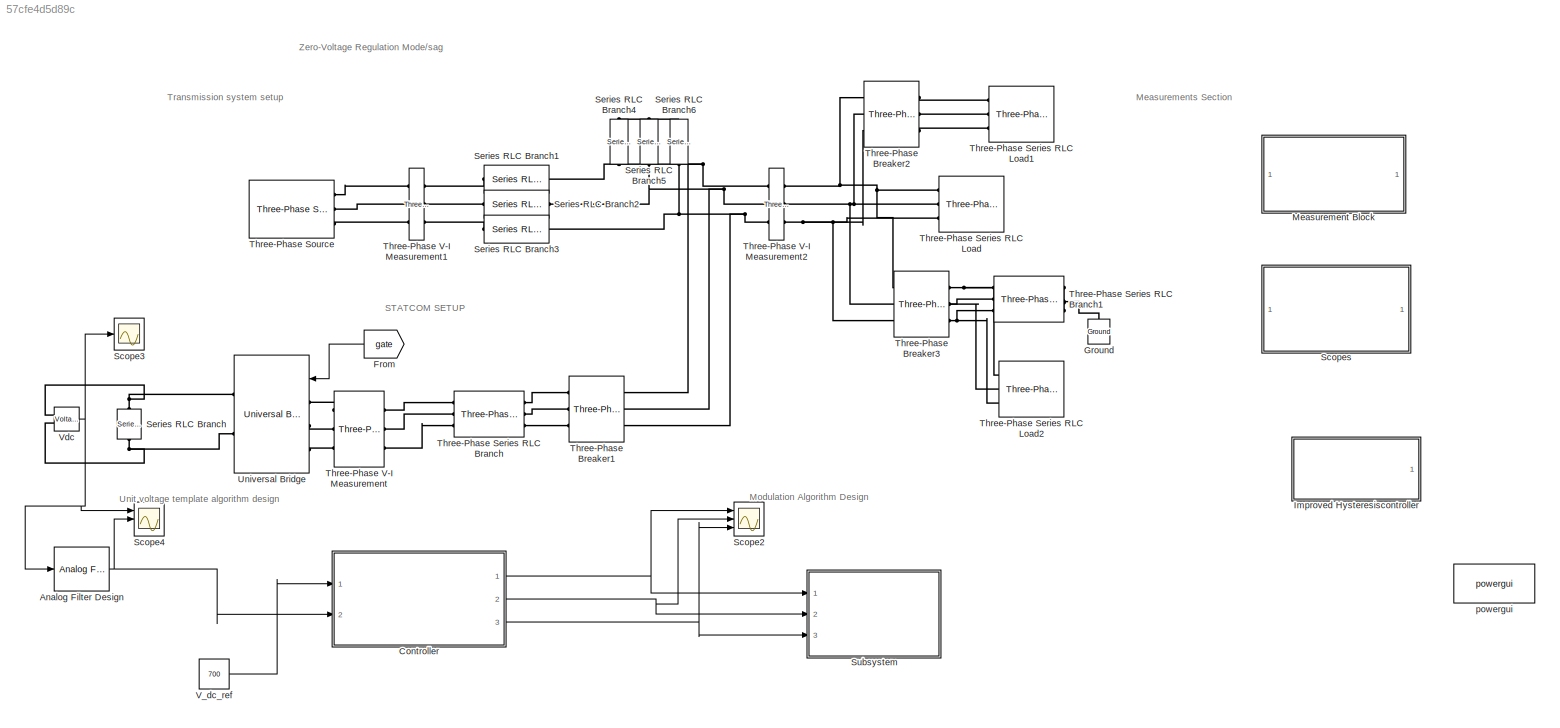
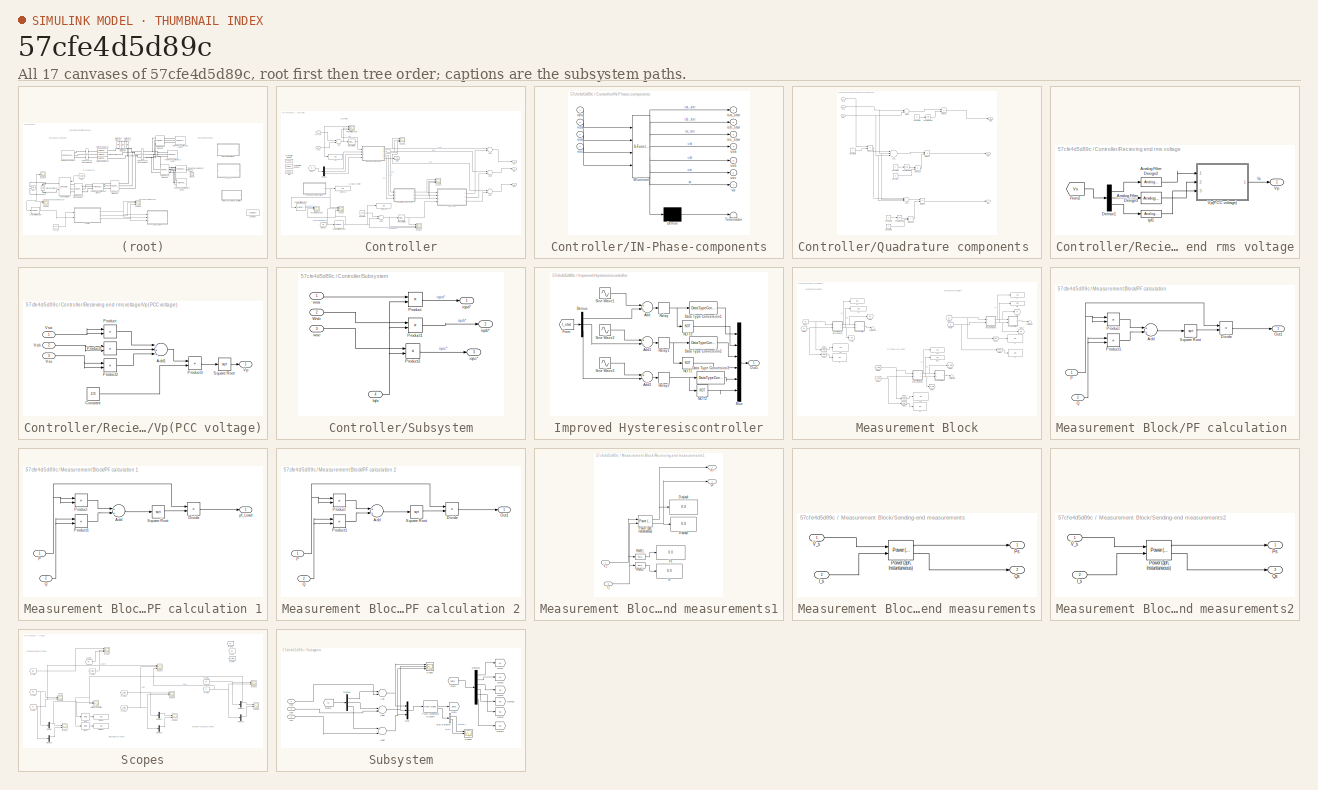
[diagram: thumbnail index - all 17 canvases of the model, root first then tree order]
MODEL slx_57cfe4d5d89c
KIND model
CONFIG AbsTol = auto
CONFIG EnableMultiTasking = off
CONFIG FixedStep = auto
CONFIG MaxStep = 1e-5
CONFIG MinStep = auto
CONFIG RelTol = 1e-3
CONFIG SampleTimeConstraint = Unconstrained
CONFIG Solver = ode23
CONFIG SolverName = ode23
CONFIG StartTime = 0.0
CONFIG StopTime = 1
BLOCK [Reference] Analog Filter Design  REF=dsparch4/Analog
Filter Design
  Ports = [1, 1]
  SourceBlock = dsparch4/Analog\nFilter Design
  SourceProductBaseCode = DS
  SourceProductName = DSP System Toolbox
  SourceType = Analog Filter Design
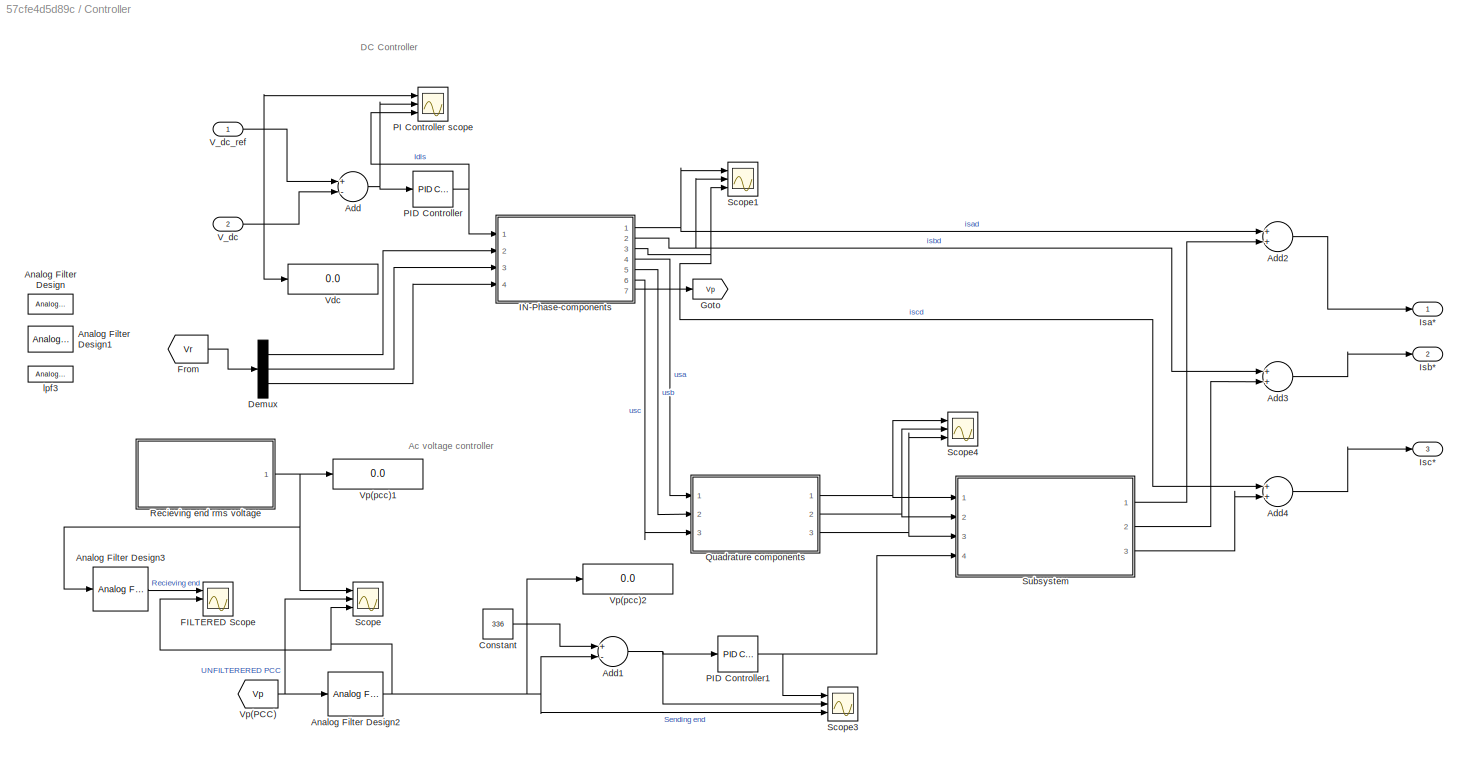
BLOCK [SubSystem] Controller
  Ports = [2, 3]
  RequestExecContextInheritance = off
BLOCK [Sum] Controller/Add
  InputSameDT = off
  Inputs = +-
  OutDataTypeStr = Inherit: Inherit via internal rule
  Ports = [2, 1]
  SaturateOnIntegerOverflow = off
BLOCK [Sum] Controller/Add1
  InputSameDT = off
  Inputs = +-
  OutDataTypeStr = Inherit: Inherit via internal rule
  Ports = [2, 1]
  SaturateOnIntegerOverflow = off
BLOCK [Sum] Controller/Add2
  InputSameDT = off
  OutDataTypeStr = Inherit: Inherit via internal rule
  Ports = [2, 1]
  SaturateOnIntegerOverflow = off
BLOCK [Sum] Controller/Add3
  InputSameDT = off
  OutDataTypeStr = Inherit: Inherit via internal rule
  Ports = [2, 1]
  SaturateOnIntegerOverflow = off
BLOCK [Sum] Controller/Add4
  InputSameDT = off
  OutDataTypeStr = Inherit: Inherit via internal rule
  Ports = [2, 1]
  SaturateOnIntegerOverflow = off
BLOCK [Reference] Controller/Analog Filter Design  REF=dsparch4/Analog
Filter Design
  Ports = [1, 1]
  SourceBlock = dsparch4/Analog\nFilter Design
  SourceProductBaseCode = DS
  SourceProductName = DSP System Toolbox
  SourceType = Analog Filter Design
BLOCK [Reference] Controller/Analog Filter Design1  REF=dsparch4/Analog
Filter Design
  Ports = [1, 1]
  SourceBlock = dsparch4/Analog\nFilter Design
  SourceProductBaseCode = DS
  SourceProductName = DSP System Toolbox
  SourceType = Analog Filter Design
BLOCK [Reference] Controller/Analog Filter Design2  REF=dsparch4/Analog
Filter Design
  Ports = [1, 1]
  SourceBlock = dsparch4/Analog\nFilter Design
  SourceProductBaseCode = DS
  SourceProductName = DSP System Toolbox
  SourceType = Analog Filter Design
BLOCK [Reference] Controller/Analog Filter Design3  REF=dsparch4/Analog
Filter Design
  Ports = [1, 1]
  SourceBlock = dsparch4/Analog\nFilter Design
  SourceProductBaseCode = DS
  SourceProductName = DSP System Toolbox
  SourceType = Analog Filter Design
BLOCK [Constant] Controller/Constant
  Value = 336
BLOCK [Demux] Controller/Demux
  DisplayOption = bar
  Outputs = 3
  Ports = [1, 3]
BLOCK [Scope] Controller/FILTERED Scope
  Floating = off
  NumInputPorts = 3
  Ports = [3]
  ScopeSpecificationString = Simulink.scopes.TimeScopeBlockCfg('CurrentConfiguration', extmgr.ConfigurationSet(extmgr.Configuration('Core','General UI',true),extmgr.Configuration('Core','Source UI',true),extmgr.Configuration('Sources','WiredSimulink',true,'DataLoggingVariableName','ScopeData2'),extmgr.Configuration('Visuals','Time Domain',true,'SerializedDisplays',{struct('MinYLimReal','-43.88955','MaxYLimReal','395.00591','Y...<+1531ch>
BLOCK [From] Controller/From
  GotoTag = Vr
  TagVisibility = global
BLOCK [Goto] Controller/Goto
  GotoTag = Vp
BLOCK [SubSystem] Controller/IN-Phase-components
  ErrorFcn = Stateflow.Translate.translate
  PermitHierarchicalResolution = ExplicitOnly
  Ports = [4, 7]
  RequestExecContextInheritance = off
  SFBlockType = MATLAB Function
  TreatAsAtomicUnit = on
BLOCK [Demux] Controller/IN-Phase-components/ Demux 
  Outputs = 1
  Ports = [1, 1]
BLOCK [S-Function] Controller/IN-Phase-components/ SFunction 
  EnableBusSupport = on
  FunctionName = sf_sfun
  PortCounts = [4 8]
  Ports = [4, 8]
  SFcnIsStateOwnerBlock = off
  SFunctionDeploymentMode = off
  Tag = Stateflow S-Function 2
BLOCK [Terminator] Controller/IN-Phase-components/ Terminator 
BLOCK [Inport] Controller/IN-Phase-components/idls
  IconDisplay = Port number
BLOCK [Outport] Controller/IN-Phase-components/isa_star
  IconDisplay = Port number
BLOCK [Outport] Controller/IN-Phase-components/isb_star
  IconDisplay = Port number
  Port = 2
BLOCK [Outport] Controller/IN-Phase-components/isc_star
  IconDisplay = Port number
  Port = 3
BLOCK [Outport] Controller/IN-Phase-components/usa
  IconDisplay = Port number
  Port = 4
BLOCK [Outport] Controller/IN-Phase-components/usb
  IconDisplay = Port number
  Port = 5
BLOCK [Outport] Controller/IN-Phase-components/usc
  IconDisplay = Port number
  Port = 6
BLOCK [Outport] Controller/IN-Phase-components/vp
  IconDisplay = Port number
  Port = 7
BLOCK [Inport] Controller/IN-Phase-components/vsa
  IconDisplay = Port number
  Port = 2
BLOCK [Inport] Controller/IN-Phase-components/vsb
  IconDisplay = Port number
  Port = 3
BLOCK [Inport] Controller/IN-Phase-components/vsc
  IconDisplay = Port number
  Port = 4
BLOCK [Outport] Controller/Isa*
  IconDisplay = Port number
BLOCK [Outport] Controller/Isb*
  IconDisplay = Port number
  Port = 2
BLOCK [Outport] Controller/Isc*
  IconDisplay = Port number
  Port = 3
BLOCK [Scope] Controller/PI Controller scope
  Floating = off
  NumInputPorts = 3
  Ports = [3]
  ScopeSpecificationString = Simulink.scopes.TimeScopeBlockCfg('CurrentConfiguration', extmgr.ConfigurationSet(extmgr.Configuration('Core','General UI',true),extmgr.Configuration('Core','Source UI',true),extmgr.Configuration('Sources','WiredSimulink',true,'DataLoggingVariableName','ScopeData2'),extmgr.Configuration('Visuals','Time Domain',true,'SerializedDisplays',{struct('MinYLimReal','-111.21438','MaxYLimReal','1000.92938',...<+2786ch>
BLOCK [Reference] Controller/PID Controller  REF=simulink/Continuous/PID Controller
  Ports = [1, 1]
  SourceBlock = simulink/Continuous/PID Controller
  SourceProductBaseCode = SL
  SourceProductName = Simulink
  SourceType = PID 1dof
BLOCK [Reference] Controller/PID Controller1  REF=simulink/Continuous/PID Controller
  Ports = [1, 1]
  SourceBlock = simulink/Continuous/PID Controller
  SourceProductBaseCode = SL
  SourceProductName = Simulink
  SourceType = PID 1dof
BLOCK [SubSystem] Controller/Quadrature components 
  Ports = [3, 3]
  RequestExecContextInheritance = off
BLOCK [Sum] Controller/Quadrature components /Add1
  InputSameDT = off
  Inputs = ++-
  OutDataTypeStr = Inherit: Inherit via internal rule
  Ports = [3, 1]
  SaturateOnIntegerOverflow = off
BLOCK [Sum] Controller/Quadrature components /Add2
  InputSameDT = off
  Inputs = -+-
  OutDataTypeStr = Inherit: Inherit via internal rule
  Ports = [3, 1]
  SaturateOnIntegerOverflow = off
BLOCK [Sum] Controller/Quadrature components /Add3
  InputSameDT = off
  Inputs = -+
  OutDataTypeStr = Inherit: Inherit via internal rule
  Ports = [2, 1]
  SaturateOnIntegerOverflow = off
BLOCK [Constant] Controller/Quadrature components /Constant
  Value = 2
BLOCK [Constant] Controller/Quadrature components /Constant1
  Value = 2
BLOCK [Constant] Controller/Quadrature components /Constant3
  Value = 3
BLOCK [Constant] Controller/Quadrature components /Constant5
  Value = 3
BLOCK [Constant] Controller/Quadrature components /Constant6
  Value = 3
BLOCK [Constant] Controller/Quadrature components /Constant7
  Value = 3
BLOCK [Product] Controller/Quadrature components /Divide1
  InputSameDT = off
  Inputs = */
  OutDataTypeStr = Inherit: Inherit via internal rule
  Ports = [2, 1]
  RndMeth = Floor
  SaturateOnIntegerOverflow = off
BLOCK [Product] Controller/Quadrature components /Divide2
  InputSameDT = off
  Inputs = */
  OutDataTypeStr = Inherit: Inherit via internal rule
  Ports = [2, 1]
  RndMeth = Floor
  SaturateOnIntegerOverflow = off
BLOCK [Product] Controller/Quadrature components /Divide3
  InputSameDT = off
  Inputs = */
  OutDataTypeStr = Inherit: Inherit via internal rule
  Ports = [2, 1]
  RndMeth = Floor
  SaturateOnIntegerOverflow = off
BLOCK [Product] Controller/Quadrature components /Product1
  InputSameDT = off
  OutDataTypeStr = Inherit: Inherit via internal rule
  Ports = [2, 1]
  RndMeth = Floor
  SaturateOnIntegerOverflow = off
BLOCK [Product] Controller/Quadrature components /Product2
  InputSameDT = off
  OutDataTypeStr = Inherit: Inherit via internal rule
  Ports = [2, 1]
  RndMeth = Floor
  SaturateOnIntegerOverflow = off
BLOCK [Product] Controller/Quadrature components /Product3
  InputSameDT = off
  OutDataTypeStr = Inherit: Inherit via internal rule
  Ports = [2, 1]
  RndMeth = Floor
  SaturateOnIntegerOverflow = off
BLOCK [Sqrt] Controller/Quadrature components /Square Root1
BLOCK [Sqrt] Controller/Quadrature components /Square Root2
BLOCK [Sqrt] Controller/Quadrature components /Square Root3
BLOCK [Inport] Controller/Quadrature components /Usa
  IconDisplay = Port number
BLOCK [Inport] Controller/Quadrature components /Usb
  IconDisplay = Port number
  Port = 2
BLOCK [Inport] Controller/Quadrature components /Usc
  IconDisplay = Port number
  Port = 3
BLOCK [Outport] Controller/Quadrature components /Wsa
  IconDisplay = Port number
BLOCK [Outport] Controller/Quadrature components /Wsb
  IconDisplay = Port number
  Port = 2
BLOCK [Outport] Controller/Quadrature components /Wsc
  IconDisplay = Port number
  Port = 3
BLOCK [SubSystem] Controller/Recieving end rms voltage
  Ports = [0, 1]
  RequestExecContextInheritance = off
BLOCK [Reference] Controller/Recieving end rms voltage/Analog Filter Design2  REF=dsparch4/Analog
Filter Design
  Ports = [1, 1]
  SourceBlock = dsparch4/Analog\nFilter Design
  SourceProductBaseCode = DS
  SourceProductName = DSP System Toolbox
  SourceType = Analog Filter Design
BLOCK [Reference] Controller/Recieving end rms voltage/Analog Filter Design3  REF=dsparch4/Analog
Filter Design
  Ports = [1, 1]
  SourceBlock = dsparch4/Analog\nFilter Design
  SourceProductBaseCode = DS
  SourceProductName = DSP System Toolbox
  SourceType = Analog Filter Design
BLOCK [Demux] Controller/Recieving end rms voltage/Demux1
  DisplayOption = bar
  Outputs = 3
  Ports = [1, 3]
BLOCK [From] Controller/Recieving end rms voltage/From2
  GotoTag = Vs
  TagVisibility = global
BLOCK [Outport] Controller/Recieving end rms voltage/Vp
  IconDisplay = Port number
BLOCK [SubSystem] Controller/Recieving end rms voltage/Vp(PCC voltage)
  Ports = [3, 1]
  RequestExecContextInheritance = off
BLOCK [Sum] Controller/Recieving end rms voltage/Vp(PCC voltage)/Add1
  InputSameDT = off
  Inputs = +++
  OutDataTypeStr = Inherit: Inherit via internal rule
  Ports = [3, 1]
  SaturateOnIntegerOverflow = off
BLOCK [Constant] Controller/Recieving end rms voltage/Vp(PCC voltage)/Constant
  Value = 2/3
BLOCK [Product] Controller/Recieving end rms voltage/Vp(PCC voltage)/Product
  InputSameDT = off
  OutDataTypeStr = Inherit: Inherit via internal rule
  Ports = [2, 1]
  RndMeth = Floor
  SaturateOnIntegerOverflow = off
BLOCK [Product] Controller/Recieving end rms voltage/Vp(PCC voltage)/Product1
  InputSameDT = off
  OutDataTypeStr = Inherit: Inherit via internal rule
  Ports = [2, 1]
  RndMeth = Floor
  SaturateOnIntegerOverflow = off
BLOCK [Product] Controller/Recieving end rms voltage/Vp(PCC voltage)/Product2
  InputSameDT = off
  OutDataTypeStr = Inherit: Inherit via internal rule
  Ports = [2, 1]
  RndMeth = Floor
  SaturateOnIntegerOverflow = off
BLOCK [Product] Controller/Recieving end rms voltage/Vp(PCC voltage)/Product3
  InputSameDT = off
  OutDataTypeStr = Inherit: Inherit via internal rule
  Ports = [2, 1]
  RndMeth = Floor
  SaturateOnIntegerOverflow = off
BLOCK [Sqrt] Controller/Recieving end rms voltage/Vp(PCC voltage)/Square Root
BLOCK [Outport] Controller/Recieving end rms voltage/Vp(PCC voltage)/Vp
  IconDisplay = Port number
BLOCK [Inport] Controller/Recieving end rms voltage/Vp(PCC voltage)/Vsa
  IconDisplay = Port number
BLOCK [Inport] Controller/Recieving end rms voltage/Vp(PCC voltage)/Vsb
  IconDisplay = Port number
  Port = 2
BLOCK [Inport] Controller/Recieving end rms voltage/Vp(PCC voltage)/Vsc
  IconDisplay = Port number
  Port = 3
BLOCK [Reference] Controller/Recieving end rms voltage/lpf1  REF=dsparch4/Analog
Filter Design
  Ports = [1, 1]
  SourceBlock = dsparch4/Analog\nFilter Design
  SourceProductBaseCode = DS
  SourceProductName = DSP System Toolbox
  SourceType = Analog Filter Design
BLOCK [Scope] Controller/Scope
  Floating = off
  NumInputPorts = 3
  Ports = [3]
  ScopeSpecificationString = Simulink.scopes.TimeScopeBlockCfg('CurrentConfiguration', extmgr.ConfigurationSet(extmgr.Configuration('Core','General UI',true),extmgr.Configuration('Core','Source UI',true),extmgr.Configuration('Sources','WiredSimulink',true,'DataLoggingVariableName','ScopeData1'),extmgr.Configuration('Visuals','Time Domain',true,'SerializedDisplays',{struct('MinYLimReal','-42.26664','MaxYLimReal','380.39972','Y...<+1550ch>
BLOCK [Scope] Controller/Scope1
  Floating = off
  NumInputPorts = 3
  Ports = [3]
  ScopeSpecificationString = Simulink.scopes.TimeScopeBlockCfg('CurrentConfiguration', extmgr.ConfigurationSet(extmgr.Configuration('Core','General UI',true),extmgr.Configuration('Core','Source UI',true),extmgr.Configuration('Sources','WiredSimulink',true,'DataLoggingVariableName','ScopeData6'),extmgr.Configuration('Visuals','Time Domain',true,'SerializedDisplays',{struct('MinYLimReal','-33.6157','MaxYLimReal','134.54857','YL...<+2721ch>
BLOCK [Scope] Controller/Scope3
  Floating = off
  NumInputPorts = 3
  Ports = [3]
  ScopeSpecificationString = Simulink.scopes.TimeScopeBlockCfg('CurrentConfiguration', extmgr.ConfigurationSet(extmgr.Configuration('Core','General UI',true),extmgr.Configuration('Core','Source UI',true),extmgr.Configuration('Sources','WiredSimulink',true,'DataLoggingVariableName','ScopeData3'),extmgr.Configuration('Visuals','Time Domain',true,'SerializedDisplays',{struct('MinYLimReal','-62.50591','MaxYLimReal','454.9474','YL...<+3155ch>
BLOCK [Scope] Controller/Scope4
  Floating = off
  NumInputPorts = 3
  Ports = [3]
  ScopeSpecificationString = Simulink.scopes.TimeScopeBlockCfg('CurrentConfiguration', extmgr.ConfigurationSet(extmgr.Configuration('Core','General UI',true),extmgr.Configuration('Core','Source UI',true),extmgr.Configuration('Sources','WiredSimulink',true,'DataLoggingVariableName','ScopeData10'),extmgr.Configuration('Visuals','Time Domain',true,'SerializedDisplays',{struct('MinYLimReal','-1.25','MaxYLimReal','1.25','YLabelRea...<+2897ch>
BLOCK [SubSystem] Controller/Subsystem
  Ports = [4, 3]
  RequestExecContextInheritance = off
BLOCK [Inport] Controller/Subsystem/Iqls
  IconDisplay = Port number
  Port = 4
BLOCK [Product] Controller/Subsystem/Product
  InputSameDT = off
  OutDataTypeStr = Inherit: Inherit via internal rule
  Ports = [2, 1]
  RndMeth = Floor
  SaturateOnIntegerOverflow = off
BLOCK [Product] Controller/Subsystem/Product1
  InputSameDT = off
  OutDataTypeStr = Inherit: Inherit via internal rule
  Ports = [2, 1]
  RndMeth = Floor
  SaturateOnIntegerOverflow = off
BLOCK [Product] Controller/Subsystem/Product2
  InputSameDT = off
  OutDataTypeStr = Inherit: Inherit via internal rule
  Ports = [2, 1]
  RndMeth = Floor
  SaturateOnIntegerOverflow = off
BLOCK [Inport] Controller/Subsystem/Wsb
  IconDisplay = Port number
  Port = 2
BLOCK [Outport] Controller/Subsystem/iqsa*
  IconDisplay = Port number
BLOCK [Outport] Controller/Subsystem/iqsb*
  IconDisplay = Port number
  Port = 2
BLOCK [Outport] Controller/Subsystem/iqsc*
  IconDisplay = Port number
  Port = 3
BLOCK [Inport] Controller/Subsystem/wsa
  IconDisplay = Port number
BLOCK [Inport] Controller/Subsystem/wsc
  IconDisplay = Port number
  Port = 3
BLOCK [Inport] Controller/V_dc
  IconDisplay = Port number
  Port = 2
BLOCK [Inport] Controller/V_dc_ref
  IconDisplay = Port number
BLOCK [Display] Controller/Vdc
  Decimation = 1
  Ports = [1]
BLOCK [From] Controller/Vp(PCC)
  GotoTag = Vp
BLOCK [Display] Controller/Vp(pcc)1
  Decimation = 1
  Ports = [1]
BLOCK [Display] Controller/Vp(pcc)2
  Decimation = 1
  Ports = [1]
BLOCK [Reference] Controller/lpf3  REF=dsparch4/Analog
Filter Design
  Ports = [1, 1]
  SourceBlock = dsparch4/Analog\nFilter Design
  SourceProductBaseCode = DS
  SourceProductName = DSP System Toolbox
  SourceType = Analog Filter Design
BLOCK [From] From
  GotoTag = gate
  TagVisibility = global
BLOCK [Reference] Ground  REF=powerlib/Elements/Ground
  Ports = [0, 0, 0, 0, 0, 1]
  SourceBlock = powerlib/Elements/Ground
  SourceProductBaseCode = PS
  SourceProductName = Simscape Electrical
  SourceType = Ground
BLOCK [SubSystem] Improved Hysteresiscontroller
  Commented = on
  Ports = [0, 1]
  RequestExecContextInheritance = off
BLOCK [Sum] Improved Hysteresiscontroller/Add
  InputSameDT = off
  Inputs = +-
  OutDataTypeStr = Inherit: Inherit via internal rule
  Ports = [2, 1]
  SaturateOnIntegerOverflow = off
BLOCK [Sum] Improved Hysteresiscontroller/Add1
  InputSameDT = off
  Inputs = +-
  OutDataTypeStr = Inherit: Inherit via internal rule
  Ports = [2, 1]
  SaturateOnIntegerOverflow = off
BLOCK [Sum] Improved Hysteresiscontroller/Add2
  InputSameDT = off
  Inputs = +-
  OutDataTypeStr = Inherit: Inherit via internal rule
  Ports = [2, 1]
  SaturateOnIntegerOverflow = off
BLOCK [DataTypeConversion] Improved Hysteresiscontroller/Data Type Conversion1
  OutDataTypeStr = boolean
  RndMeth = Floor
  SaturateOnIntegerOverflow = off
BLOCK [DataTypeConversion] Improved Hysteresiscontroller/Data Type Conversion2
  OutDataTypeStr = boolean
  RndMeth = Floor
  SaturateOnIntegerOverflow = off
BLOCK [DataTypeConversion] Improved Hysteresiscontroller/Data Type Conversion3
  OutDataTypeStr = boolean
  RndMeth = Floor
  SaturateOnIntegerOverflow = off
BLOCK [Demux] Improved Hysteresiscontroller/Demux
  DisplayOption = bar
  Outputs = 3
  Ports = [1, 3]
BLOCK [From] Improved Hysteresiscontroller/From
  GotoTag = I_stat
  TagVisibility = global
BLOCK [Mux] Improved Hysteresiscontroller/Mux
  DisplayOption = bar
  Inputs = 6
  Ports = [6, 1]
BLOCK [Logic] Improved Hysteresiscontroller/NOT1
  AllPortsSameDT = off
  IconShape = distinctive
  Operator = NOT
  OutDataTypeStr = boolean
  Ports = [1, 1]
BLOCK [Logic] Improved Hysteresiscontroller/NOT2
  AllPortsSameDT = off
  IconShape = distinctive
  Operator = NOT
  OutDataTypeStr = boolean
  Ports = [1, 1]
BLOCK [Logic] Improved Hysteresiscontroller/NOT3
  AllPortsSameDT = off
  IconShape = distinctive
  Operator = NOT
  OutDataTypeStr = boolean
  Ports = [1, 1]
BLOCK [Outport] Improved Hysteresiscontroller/Out1
  IconDisplay = Port number
BLOCK [Relay] Improved Hysteresiscontroller/Relay
  OffSwitchValue = -0.1
  OnSwitchValue = 0.1
BLOCK [Relay] Improved Hysteresiscontroller/Relay1
  OffSwitchValue = -0.1
  OnSwitchValue = 0.1
BLOCK [Relay] Improved Hysteresiscontroller/Relay2
  OffSwitchValue = -0.1
  OnSwitchValue = 0.1
BLOCK [Sin] Improved Hysteresiscontroller/Sine Wave1
  Amplitude = 5
  Frequency = 100*pi
  Ports = [0, 1]
  SampleTime = 0
BLOCK [Sin] Improved Hysteresiscontroller/Sine Wave2
  Amplitude = 5
  Frequency = 100*pi
  Phase = -2*pi/3
  Ports = [0, 1]
  SampleTime = 0
BLOCK [Sin] Improved Hysteresiscontroller/Sine Wave3
  Amplitude = 5
  Frequency = 100*pi
  Phase = 2*pi/3
  Ports = [0, 1]
  SampleTime = 0
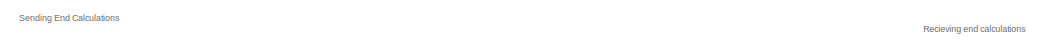
[diagram: Measurement Block - part 1/3, top center region]
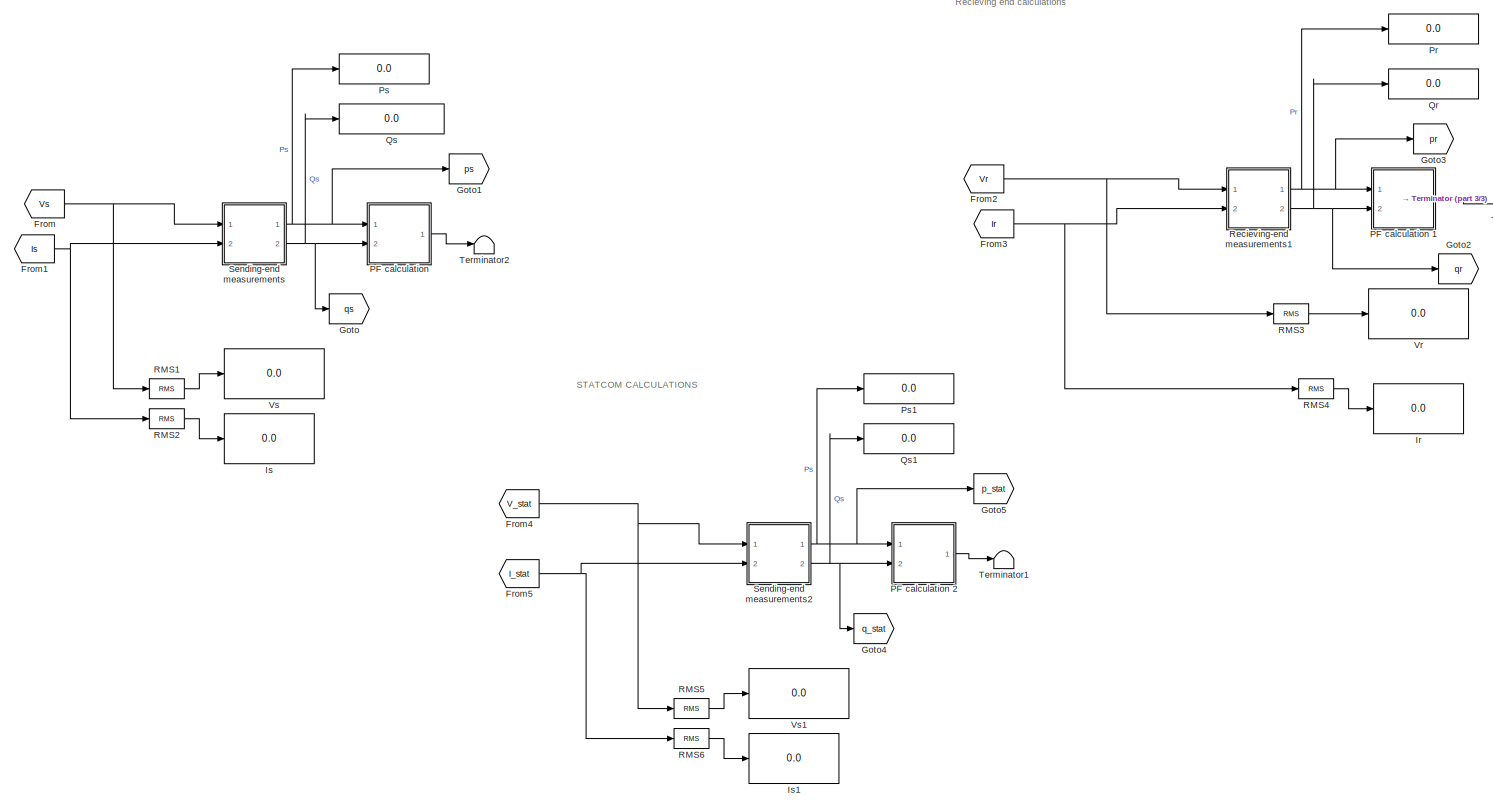
[diagram: Measurement Block - part 2/3, most of the canvas]
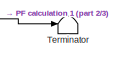
[diagram: Measurement Block - part 3/3, top right region]
BLOCK [SubSystem] Measurement Block
  Ports = []
  RequestExecContextInheritance = off
BLOCK [From] Measurement Block/From
  GotoTag = Vs
  TagVisibility = global
BLOCK [From] Measurement Block/From1
  GotoTag = Is
  TagVisibility = global
BLOCK [From] Measurement Block/From2
  GotoTag = Vr
  TagVisibility = global
BLOCK [From] Measurement Block/From3
  GotoTag = Ir
  TagVisibility = global
BLOCK [From] Measurement Block/From4
  GotoTag = V_stat
  TagVisibility = global
BLOCK [From] Measurement Block/From5
  GotoTag = I_stat
  TagVisibility = global
BLOCK [Goto] Measurement Block/Goto
  GotoTag = qs
  TagVisibility = global
BLOCK [Goto] Measurement Block/Goto1
  GotoTag = ps
  TagVisibility = global
BLOCK [Goto] Measurement Block/Goto2
  GotoTag = qr
  TagVisibility = global
BLOCK [Goto] Measurement Block/Goto3
  GotoTag = pr
  TagVisibility = global
BLOCK [Goto] Measurement Block/Goto4
  GotoTag = q_stat
  TagVisibility = global
BLOCK [Goto] Measurement Block/Goto5
  GotoTag = p_stat
  TagVisibility = global
BLOCK [Display] Measurement Block/Ir
  Decimation = 1
  Ports = [1]
BLOCK [Display] Measurement Block/Is
  Decimation = 1
  Ports = [1]
BLOCK [Display] Measurement Block/Is1
  Decimation = 1
  Ports = [1]
BLOCK [SubSystem] Measurement Block/PF calculation 
  Ports = [2, 1]
  RequestExecContextInheritance = off
BLOCK [Sum] Measurement Block/PF calculation /Add
  InputSameDT = off
  OutDataTypeStr = Inherit: Inherit via internal rule
  Ports = [2, 1]
  SaturateOnIntegerOverflow = off
BLOCK [Product] Measurement Block/PF calculation /Divide
  InputSameDT = off
  Inputs = */
  OutDataTypeStr = Inherit: Inherit via internal rule
  Ports = [2, 1]
  RndMeth = Floor
  SaturateOnIntegerOverflow = off
BLOCK [Outport] Measurement Block/PF calculation /Out1
  IconDisplay = Port number
BLOCK [Inport] Measurement Block/PF calculation /P
  IconDisplay = Port number
BLOCK [Product] Measurement Block/PF calculation /Product
  InputSameDT = off
  OutDataTypeStr = Inherit: Inherit via internal rule
  Ports = [2, 1]
  RndMeth = Floor
  SaturateOnIntegerOverflow = off
BLOCK [Product] Measurement Block/PF calculation /Product1
  InputSameDT = off
  OutDataTypeStr = Inherit: Inherit via internal rule
  Ports = [2, 1]
  RndMeth = Floor
  SaturateOnIntegerOverflow = off
BLOCK [Inport] Measurement Block/PF calculation /Q
  IconDisplay = Port number
  Port = 2
BLOCK [Sqrt] Measurement Block/PF calculation /Square Root
BLOCK [SubSystem] Measurement Block/PF calculation 1
  Ports = [2, 1]
  RequestExecContextInheritance = off
BLOCK [Sum] Measurement Block/PF calculation 1/Add
  InputSameDT = off
  OutDataTypeStr = Inherit: Inherit via internal rule
  Ports = [2, 1]
  SaturateOnIntegerOverflow = off
BLOCK [Product] Measurement Block/PF calculation 1/Divide
  InputSameDT = off
  Inputs = */
  OutDataTypeStr = Inherit: Inherit via internal rule
  Ports = [2, 1]
  RndMeth = Floor
  SaturateOnIntegerOverflow = off
BLOCK [Inport] Measurement Block/PF calculation 1/P
  IconDisplay = Port number
BLOCK [Product] Measurement Block/PF calculation 1/Product
  InputSameDT = off
  OutDataTypeStr = Inherit: Inherit via internal rule
  Ports = [2, 1]
  RndMeth = Floor
  SaturateOnIntegerOverflow = off
BLOCK [Product] Measurement Block/PF calculation 1/Product1
  InputSameDT = off
  OutDataTypeStr = Inherit: Inherit via internal rule
  Ports = [2, 1]
  RndMeth = Floor
  SaturateOnIntegerOverflow = off
BLOCK [Inport] Measurement Block/PF calculation 1/Q
  IconDisplay = Port number
  Port = 2
BLOCK [Sqrt] Measurement Block/PF calculation 1/Square Root
BLOCK [Outport] Measurement Block/PF calculation 1/pf_Load
  IconDisplay = Port number
BLOCK [SubSystem] Measurement Block/PF calculation 2
  Ports = [2, 1]
  RequestExecContextInheritance = off
BLOCK [Sum] Measurement Block/PF calculation 2/Add
  InputSameDT = off
  OutDataTypeStr = Inherit: Inherit via internal rule
  Ports = [2, 1]
  SaturateOnIntegerOverflow = off
BLOCK [Product] Measurement Block/PF calculation 2/Divide
  InputSameDT = off
  Inputs = */
  OutDataTypeStr = Inherit: Inherit via internal rule
  Ports = [2, 1]
  RndMeth = Floor
  SaturateOnIntegerOverflow = off
BLOCK [Outport] Measurement Block/PF calculation 2/Out1
  IconDisplay = Port number
BLOCK [Inport] Measurement Block/PF calculation 2/P
  IconDisplay = Port number
BLOCK [Product] Measurement Block/PF calculation 2/Product
  InputSameDT = off
  OutDataTypeStr = Inherit: Inherit via internal rule
  Ports = [2, 1]
  RndMeth = Floor
  SaturateOnIntegerOverflow = off
BLOCK [Product] Measurement Block/PF calculation 2/Product1
  InputSameDT = off
  OutDataTypeStr = Inherit: Inherit via internal rule
  Ports = [2, 1]
  RndMeth = Floor
  SaturateOnIntegerOverflow = off
BLOCK [Inport] Measurement Block/PF calculation 2/Q
  IconDisplay = Port number
  Port = 2
BLOCK [Sqrt] Measurement Block/PF calculation 2/Square Root
BLOCK [Display] Measurement Block/Pr
  Decimation = 1
  Ports = [1]
BLOCK [Display] Measurement Block/Ps
  Decimation = 1
  Ports = [1]
BLOCK [Display] Measurement Block/Ps1
  Decimation = 1
  Ports = [1]
BLOCK [Display] Measurement Block/Qr
  Decimation = 1
  Ports = [1]
BLOCK [Display] Measurement Block/Qs
  Decimation = 1
  Format = short_e
  Ports = [1]
BLOCK [Display] Measurement Block/Qs1
  Decimation = 1
  Ports = [1]
BLOCK [Reference] Measurement Block/RMS1  REF=powerlib_meascontrol/Measurements/RMS
  Ports = [1, 1]
  SourceBlock = powerlib_meascontrol/Measurements/RMS
  SourceProductBaseCode = PS
  SourceProductName = Simscape Electrical
  SourceType = RMS
BLOCK [Reference] Measurement Block/RMS2  REF=powerlib_meascontrol/Measurements/RMS
  Ports = [1, 1]
  SourceBlock = powerlib_meascontrol/Measurements/RMS
  SourceProductBaseCode = PS
  SourceProductName = Simscape Electrical
  SourceType = RMS
BLOCK [Reference] Measurement Block/RMS3  REF=powerlib_meascontrol/Measurements/RMS
  Ports = [1, 1]
  SourceBlock = powerlib_meascontrol/Measurements/RMS
  SourceProductBaseCode = PS
  SourceProductName = Simscape Electrical
  SourceType = RMS
BLOCK [Reference] Measurement Block/RMS4  REF=powerlib_meascontrol/Measurements/RMS
  Ports = [1, 1]
  SourceBlock = powerlib_meascontrol/Measurements/RMS
  SourceProductBaseCode = PS
  SourceProductName = Simscape Electrical
  SourceType = RMS
BLOCK [Reference] Measurement Block/RMS5  REF=powerlib_meascontrol/Measurements/RMS
  Ports = [1, 1]
  SourceBlock = powerlib_meascontrol/Measurements/RMS
  SourceProductBaseCode = PS
  SourceProductName = Simscape Electrical
  SourceType = RMS
BLOCK [Reference] Measurement Block/RMS6  REF=powerlib_meascontrol/Measurements/RMS
  Ports = [1, 1]
  SourceBlock = powerlib_meascontrol/Measurements/RMS
  SourceProductBaseCode = PS
  SourceProductName = Simscape Electrical
  SourceType = RMS
BLOCK [SubSystem] Measurement Block/Recieving-end measurements1
  Ports = [2, 2]
  RequestExecContextInheritance = off
BLOCK [Display] Measurement Block/Recieving-end measurements1/Display4
  Decimation = 1
  Ports = [1]
BLOCK [Display] Measurement Block/Recieving-end measurements1/Display5
  Decimation = 1
  Ports = [1]
BLOCK [Inport] Measurement Block/Recieving-end measurements1/I_r
  IconDisplay = Port number
  Port = 2
BLOCK [Display] Measurement Block/Recieving-end measurements1/Is
  Decimation = 1
  Ports = [1]
BLOCK [Reference] Measurement Block/Recieving-end measurements1/Power (3ph, Instantaneous)  REF=powerlib_meascontrol/Measurements/Power
(3ph, Instantaneous)
  Ports = [2, 2]
  SourceBlock = powerlib_meascontrol/Measurements/Power\n(3ph, Instantaneous)
  SourceProductBaseCode = PS
  SourceProductName = Simscape Electrical
  SourceType = Power (3ph, Instantaneous)
BLOCK [Outport] Measurement Block/Recieving-end measurements1/Pr
  IconDisplay = Port number
BLOCK [Outport] Measurement Block/Recieving-end measurements1/Qr
  IconDisplay = Port number
  Port = 2
BLOCK [Reference] Measurement Block/Recieving-end measurements1/RMS1  REF=powerlib_meascontrol/Measurements/RMS
  Ports = [1, 1]
  SourceBlock = powerlib_meascontrol/Measurements/RMS
  SourceProductBaseCode = PS
  SourceProductName = Simscape Electrical
  SourceType = RMS
BLOCK [Reference] Measurement Block/Recieving-end measurements1/RMS2  REF=powerlib_meascontrol/Measurements/RMS
  Ports = [1, 1]
  SourceBlock = powerlib_meascontrol/Measurements/RMS
  SourceProductBaseCode = PS
  SourceProductName = Simscape Electrical
  SourceType = RMS
BLOCK [Inport] Measurement Block/Recieving-end measurements1/V_r
  IconDisplay = Port number
BLOCK [Display] Measurement Block/Recieving-end measurements1/Vs
  Decimation = 1
  Ports = [1]
BLOCK [SubSystem] Measurement Block/Sending-end measurements
  Ports = [2, 2]
  RequestExecContextInheritance = off
BLOCK [Inport] Measurement Block/Sending-end measurements/I_s
  IconDisplay = Port number
  Port = 2
BLOCK [Reference] Measurement Block/Sending-end measurements/Power (3ph, Instantaneous)  REF=powerlib_meascontrol/Measurements/Power
(3ph, Instantaneous)
  Ports = [2, 2]
  SourceBlock = powerlib_meascontrol/Measurements/Power\n(3ph, Instantaneous)
  SourceProductBaseCode = PS
  SourceProductName = Simscape Electrical
  SourceType = Power (3ph, Instantaneous)
BLOCK [Outport] Measurement Block/Sending-end measurements/Ps
  IconDisplay = Port number
BLOCK [Outport] Measurement Block/Sending-end measurements/Qs
  IconDisplay = Port number
  Port = 2
BLOCK [Inport] Measurement Block/Sending-end measurements/V_s
  IconDisplay = Port number
BLOCK [SubSystem] Measurement Block/Sending-end measurements2
  Ports = [2, 2]
  RequestExecContextInheritance = off
BLOCK [Inport] Measurement Block/Sending-end measurements2/I_s
  IconDisplay = Port number
  Port = 2
BLOCK [Reference] Measurement Block/Sending-end measurements2/Power (3ph, Instantaneous)  REF=powerlib_meascontrol/Measurements/Power
(3ph, Instantaneous)
  Ports = [2, 2]
  SourceBlock = powerlib_meascontrol/Measurements/Power\n(3ph, Instantaneous)
  SourceProductBaseCode = PS
  SourceProductName = Simscape Electrical
  SourceType = Power (3ph, Instantaneous)
BLOCK [Outport] Measurement Block/Sending-end measurements2/Ps
  IconDisplay = Port number
BLOCK [Outport] Measurement Block/Sending-end measurements2/Qs
  IconDisplay = Port number
  Port = 2
BLOCK [Inport] Measurement Block/Sending-end measurements2/V_s
  IconDisplay = Port number
BLOCK [Terminator] Measurement Block/Terminator
BLOCK [Terminator] Measurement Block/Terminator1
BLOCK [Terminator] Measurement Block/Terminator2
BLOCK [Display] Measurement Block/Vr
  Decimation = 1
  Ports = [1]
BLOCK [Display] Measurement Block/Vs
  Decimation = 1
  Ports = [1]
BLOCK [Display] Measurement Block/Vs1
  Decimation = 1
  Ports = [1]
BLOCK [Scope] Scope2
  Floating = off
  NumInputPorts = 3
  Ports = [3]
  ScopeSpecificationString = Simulink.scopes.TimeScopeBlockCfg('CurrentConfiguration', extmgr.ConfigurationSet(extmgr.Configuration('Core','General UI',true),extmgr.Configuration('Core','Source UI',true),extmgr.Configuration('Sources','WiredSimulink',true,'DataLoggingVariableName','ScopeData5'),extmgr.Configuration('Visuals','Time Domain',true,'SerializedDisplays',{struct('MinYLimReal','-2548.07612','MaxYLimReal','2089.3656',...<+1475ch>
BLOCK [Scope] Scope3
  Floating = off
  NumInputPorts = 1
  Ports = [1]
  ScopeSpecificationString = Simulink.scopes.TimeScopeBlockCfg('CurrentConfiguration', extmgr.ConfigurationSet(extmgr.Configuration('Core','General UI',true),extmgr.Configuration('Core','Source UI',true),extmgr.Configuration('Sources','WiredSimulink',true,'DataLoggingVariableName','ScopeData7'),extmgr.Configuration('Visuals','Time Domain',true,'SerializedDisplays',{struct('MinYLimReal','526.6612','MaxYLimReal','567.27398','YL...<+1443ch>
BLOCK [Scope] Scope4
  Floating = off
  NumInputPorts = 3
  Ports = [3]
  ScopeSpecificationString = Simulink.scopes.TimeScopeBlockCfg('CurrentConfiguration', extmgr.ConfigurationSet(extmgr.Configuration('Core','General UI',true),extmgr.Configuration('Core','Source UI',true),extmgr.Configuration('Sources','WiredSimulink',true,'DataLoggingVariableName','ScopeData8'),extmgr.Configuration('Visuals','Time Domain',true,'SerializedDisplays',{struct('MinYLimReal','689.33296','MaxYLimReal','793.87825','Y...<+2813ch>
BLOCK [SubSystem] Scopes
  Ports = []
  RequestExecContextInheritance = off
BLOCK [Demux] Scopes/Demux
  DisplayOption = bar
  Outputs = 3
  Ports = [1, 3]
BLOCK [Demux] Scopes/Demux1
  DisplayOption = bar
  Outputs = 3
  Ports = [1, 3]
BLOCK [Demux] Scopes/Demux2
  DisplayOption = bar
  Outputs = 3
  Ports = [1, 3]
BLOCK [Demux] Scopes/Demux3
  DisplayOption = bar
  Outputs = 3
  Ports = [1, 3]
BLOCK [Demux] Scopes/Demux4
  DisplayOption = bar
  Outputs = 3
  Ports = [1, 3]
BLOCK [Demux] Scopes/Demux5
  DisplayOption = bar
  Outputs = 3
  Ports = [1, 3]
BLOCK [Display] Scopes/Display
  Decimation = 1
  Ports = [1]
BLOCK [Display] Scopes/Display1
  Decimation = 1
  Ports = [1]
BLOCK [From] Scopes/From
  GotoTag = ps
  TagVisibility = global
BLOCK [From] Scopes/From1
  GotoTag = qs
  TagVisibility = global
BLOCK [From] Scopes/From10
  GotoTag = V_stat
  TagVisibility = global
BLOCK [From] Scopes/From11
  GotoTag = I_stat
  TagVisibility = global
BLOCK [From] Scopes/From2
  GotoTag = pr
  TagVisibility = global
BLOCK [From] Scopes/From3
  GotoTag = qr
  TagVisibility = global
BLOCK [From] Scopes/From4
  GotoTag = p_stat
  TagVisibility = global
BLOCK [From] Scopes/From5
  GotoTag = q_stat
  TagVisibility = global
BLOCK [From] Scopes/From6
  GotoTag = Vs
  TagVisibility = global
BLOCK [From] Scopes/From7
  GotoTag = Is
  TagVisibility = global
BLOCK [From] Scopes/From8
  GotoTag = Vr
  TagVisibility = global
BLOCK [From] Scopes/From9
  GotoTag = Ir
  TagVisibility = global
BLOCK [Reference] Scopes/RMS  REF=powerlib_meascontrol/Measurements/RMS
  Ports = [1, 1]
  SourceBlock = powerlib_meascontrol/Measurements/RMS
  SourceProductBaseCode = PS
  SourceProductName = Simscape Electrical
  SourceType = RMS
BLOCK [Reference] Scopes/RMS1  REF=powerlib_meascontrol/Measurements/RMS
  Ports = [1, 1]
  SourceBlock = powerlib_meascontrol/Measurements/RMS
  SourceProductBaseCode = PS
  SourceProductName = Simscape Electrical
  SourceType = RMS
BLOCK [Scope] Scopes/Scope
  Floating = off
  NumInputPorts = 2
  Ports = [2]
  ScopeSpecificationString = Simulink.scopes.TimeScopeBlockCfg('CurrentConfiguration', extmgr.ConfigurationSet(extmgr.Configuration('Core','General UI',true),extmgr.Configuration('Core','Source UI',true),extmgr.Configuration('Sources','WiredSimulink',true),extmgr.Configuration('Visuals','Time Domain',true,'SerializedDisplays',{struct('MinYLimReal','282.23696','MaxYLimReal','373.15896','YLabelReal','','MinYLimMag','282.23696',...<+2118ch>
BLOCK [Scope] Scopes/Scope1
  Floating = off
  NumInputPorts = 2
  Ports = [2]
  ScopeSpecificationString = Simulink.scopes.TimeScopeBlockCfg('CurrentConfiguration', extmgr.ConfigurationSet(extmgr.Configuration('Core','General UI',true),extmgr.Configuration('Core','Source UI',true),extmgr.Configuration('Sources','WiredSimulink',true,'DataLoggingVariableName','ScopeData1'),extmgr.Configuration('Visuals','Time Domain',true,'SerializedDisplays',{struct('MinYLimReal','-428.20659','MaxYLimReal','429.02804','...<+2147ch>
BLOCK [Scope] Scopes/Scope2
  Floating = off
  NumInputPorts = 2
  Ports = [2]
  ScopeSpecificationString = Simulink.scopes.TimeScopeBlockCfg('CurrentConfiguration', extmgr.ConfigurationSet(extmgr.Configuration('Core','General UI',true),extmgr.Configuration('Core','Source UI',true),extmgr.Configuration('Sources','WiredSimulink',true,'DataLoggingVariableName','ScopeData2'),extmgr.Configuration('Visuals','Time Domain',true,'SerializedDisplays',{struct('MinYLimReal','-210038.8036','MaxYLimReal','199537.462...<+2165ch>
BLOCK [Scope] Scopes/Scope3
  Floating = off
  NumInputPorts = 2
  Ports = [2]
  ScopeSpecificationString = Simulink.scopes.TimeScopeBlockCfg('CurrentConfiguration', extmgr.ConfigurationSet(extmgr.Configuration('Core','General UI',true),extmgr.Configuration('Core','Source UI',true),extmgr.Configuration('Sources','WiredSimulink',true,'DataLoggingVariableName','ScopeData3'),extmgr.Configuration('Visuals','Time Domain',true,'SerializedDisplays',{struct('MinYLimReal','302.87156','MaxYLimReal','343.34753','Y...<+2130ch>
BLOCK [Scope] Scopes/Scope4
  Floating = off
  NumInputPorts = 2
  Ports = [2]
  ScopeSpecificationString = Simulink.scopes.TimeScopeBlockCfg('CurrentConfiguration', extmgr.ConfigurationSet(extmgr.Configuration('Core','General UI',true),extmgr.Configuration('Core','Source UI',true),extmgr.Configuration('Sources','WiredSimulink',true,'DataLoggingVariableName','ScopeData1'),extmgr.Configuration('Visuals','Time Domain',true,'SerializedDisplays',{struct('MinYLimReal','-611.42004','MaxYLimReal','611.4187','Y...<+2849ch>
BLOCK [Scope] Scopes/Scope5
  Floating = off
  NumInputPorts = 2
  Ports = [2]
  ScopeSpecificationString = Simulink.scopes.TimeScopeBlockCfg('CurrentConfiguration', extmgr.ConfigurationSet(extmgr.Configuration('Core','General UI',true),extmgr.Configuration('Core','Source UI',true),extmgr.Configuration('Sources','WiredSimulink',true,'DataLoggingVariableName','ScopeData2'),extmgr.Configuration('Visuals','Time Domain',true,'SerializedDisplays',{struct('MinYLimReal','-583.3319','MaxYLimReal','583.32052','Y...<+2263ch>
BLOCK [Scope] Scopes/Scope6
  Floating = off
  NumInputPorts = 3
  Ports = [3]
  ScopeSpecificationString = Simulink.scopes.TimeScopeBlockCfg('CurrentConfiguration', extmgr.ConfigurationSet(extmgr.Configuration('Core','General UI',true),extmgr.Configuration('Core','Source UI',true),extmgr.Configuration('Sources','WiredSimulink',true,'DataLoggingVariableName','ScopeData1'),extmgr.Configuration('Visuals','Time Domain',true,'SerializedDisplays',{struct('MinYLimReal','-188.88115','MaxYLimReal','231.80589','...<+3609ch>
BLOCK [Scope] Scopes/Scope7
  Floating = off
  NumInputPorts = 3
  Ports = [3]
  ScopeSpecificationString = Simulink.scopes.TimeScopeBlockCfg('CurrentConfiguration', extmgr.ConfigurationSet(extmgr.Configuration('Core','General UI',true),extmgr.Configuration('Core','Source UI',true),extmgr.Configuration('Sources','WiredSimulink',true,'DataLoggingVariableName','ScopeData2'),extmgr.Configuration('Visuals','Time Domain',true,'SerializedDisplays',{struct('MinYLimReal','-7419.12162','MaxYLimReal','33095.26652...<+3543ch>
BLOCK [Scope] Scopes/Voltage regulation
  Floating = off
  NumInputPorts = 3
  Ports = [3]
  ScopeSpecificationString = Simulink.scopes.TimeScopeBlockCfg('CurrentConfiguration', extmgr.ConfigurationSet(extmgr.Configuration('Core','General UI',true),extmgr.Configuration('Core','Source UI',true),extmgr.Configuration('Sources','WiredSimulink',true,'DataLoggingVariableName','ScopeData1'),extmgr.Configuration('Visuals','Time Domain',true,'SerializedDisplays',{struct('MinYLimReal','-440.11719','MaxYLimReal','443.28883','...<+2037ch>
BLOCK [Reference] Series RLC Branch  REF=powerlib/Elements/Series RLC Branch
  Ports = [0, 0, 0, 0, 0, 1, 1]
  SourceBlock = powerlib/Elements/Series RLC Branch
  SourceProductBaseCode = PS
  SourceProductName = Simscape Electrical
  SourceType = Series RLC Branch
BLOCK [Reference] Series RLC Branch1  REF=powerlib/Elements/Series RLC Branch
  Ports = [0, 0, 0, 0, 0, 1, 1]
  SourceBlock = powerlib/Elements/Series RLC Branch
  SourceProductBaseCode = PS
  SourceProductName = Simscape Electrical
  SourceType = Series RLC Branch
BLOCK [Reference] Series RLC Branch2  REF=powerlib/Elements/Series RLC Branch
  Ports = [0, 0, 0, 0, 0, 1, 1]
  SourceBlock = powerlib/Elements/Series RLC Branch
  SourceProductBaseCode = PS
  SourceProductName = Simscape Electrical
  SourceType = Series RLC Branch
BLOCK [Reference] Series RLC Branch3  REF=powerlib/Elements/Series RLC Branch
  Ports = [0, 0, 0, 0, 0, 1, 1]
  SourceBlock = powerlib/Elements/Series RLC Branch
  SourceProductBaseCode = PS
  SourceProductName = Simscape Electrical
  SourceType = Series RLC Branch
BLOCK [Reference] Series RLC Branch4  REF=powerlib/Elements/Series RLC Branch
  Ports = [0, 0, 0, 0, 0, 1, 1]
  SourceBlock = powerlib/Elements/Series RLC Branch
  SourceProductBaseCode = PS
  SourceProductName = Simscape Electrical
  SourceType = Series RLC Branch
BLOCK [Reference] Series RLC Branch5  REF=powerlib/Elements/Series RLC Branch
  Ports = [0, 0, 0, 0, 0, 1, 1]
  SourceBlock = powerlib/Elements/Series RLC Branch
  SourceProductBaseCode = PS
  SourceProductName = Simscape Electrical
  SourceType = Series RLC Branch
BLOCK [Reference] Series RLC Branch6  REF=powerlib/Elements/Series RLC Branch
  Ports = [0, 0, 0, 0, 0, 1, 1]
  SourceBlock = powerlib/Elements/Series RLC Branch
  SourceProductBaseCode = PS
  SourceProductName = Simscape Electrical
  SourceType = Series RLC Branch
BLOCK [SubSystem] Subsystem
  Ports = [3]
  RequestExecContextInheritance = off
BLOCK [Sum] Subsystem/Add
  InputSameDT = off
  Inputs = +-
  OutDataTypeStr = Inherit: Inherit via internal rule
  Ports = [2, 1]
  SaturateOnIntegerOverflow = off
BLOCK [Sum] Subsystem/Add1
  InputSameDT = off
  Inputs = +-
  OutDataTypeStr = Inherit: Inherit via internal rule
  Ports = [2, 1]
  SaturateOnIntegerOverflow = off
BLOCK [Sum] Subsystem/Add2
  InputSameDT = off
  Inputs = +-
  OutDataTypeStr = Inherit: Inherit via internal rule
  Ports = [2, 1]
  SaturateOnIntegerOverflow = off
BLOCK [BusSelector] Subsystem/Bus Selector
  OutputAsBus = off
  OutputSignals = carrier,Uref
  Ports = [1, 2]
BLOCK [Demux] Subsystem/Demux
  DisplayOption = bar
  Outputs = 3
  Ports = [1, 3]
BLOCK [Demux] Subsystem/Demux1
  Commented = on
  DisplayOption = bar
  Outputs = 6
  Ports = [1, 6]
BLOCK [From] Subsystem/From
  Commented = on
  GotoTag = gate
  TagVisibility = global
BLOCK [From] Subsystem/From2
  GotoTag = Is
  TagVisibility = global
BLOCK [Goto] Subsystem/Goto
  GotoTag = gate
  TagVisibility = global
BLOCK [Goto] Subsystem/Goto1
  Commented = on
  GotoTag = s1
  TagVisibility = global
BLOCK [Goto] Subsystem/Goto10
  Commented = on
  GotoTag = s6
  TagVisibility = global
BLOCK [Goto] Subsystem/Goto11
  Commented = on
  GotoTag = s2
  TagVisibility = global
BLOCK [Goto] Subsystem/Goto2
  Commented = on
  GotoTag = s3
  TagVisibility = global
BLOCK [Goto] Subsystem/Goto3
  Commented = on
  GotoTag = s5
  TagVisibility = global
BLOCK [Goto] Subsystem/Goto9
  Commented = on
  GotoTag = s4
  TagVisibility = global
BLOCK [Inport] Subsystem/Isa*
  IconDisplay = Port number
BLOCK [Inport] Subsystem/Isb*
  IconDisplay = Port number
  Port = 2
BLOCK [Inport] Subsystem/Isc*
  IconDisplay = Port number
  Port = 3
BLOCK [Mux] Subsystem/Mux
  DisplayOption = bar
  Inputs = 3
  Ports = [3, 1]
BLOCK [Reference] Subsystem/PWM Generator (2-Level)  REF=powerlib_meascontrol/Pulse & Signal
Generators/PWM Generator
(2-Level)
  Ports = [1, 2]
  SourceBlock = powerlib_meascontrol/Pulse & Signal\nGenerators/PWM Generator\n(2-Level)
  SourceProductBaseCode = PS
  SourceProductName = Simscape Electrical
  SourceType = PWM Generator (2-Level)
BLOCK [Scope] Subsystem/Scope
  Floating = off
  NumInputPorts = 3
  Ports = [3]
  ScopeSpecificationString = Simulink.scopes.TimeScopeBlockCfg('CurrentConfiguration', extmgr.ConfigurationSet(extmgr.Configuration('Core','General UI',true),extmgr.Configuration('Core','Source UI',true),extmgr.Configuration('Sources','WiredSimulink',true,'DataLoggingVariableName','ScopeData4'),extmgr.Configuration('Visuals','Time Domain',true,'SerializedDisplays',{struct('MinYLimReal','-2076.33505','MaxYLimReal','2545.42146'...<+1498ch>
BLOCK [Scope] Subsystem/Scope1
  Floating = off
  NumInputPorts = 3
  Ports = [3]
  ScopeSpecificationString = Simulink.scopes.TimeScopeBlockCfg('CurrentConfiguration', extmgr.ConfigurationSet(extmgr.Configuration('Core','General UI',true),extmgr.Configuration('Core','Source UI',true),extmgr.Configuration('Sources','WiredSimulink',true,'DataLoggingVariableName','ScopeData9'),extmgr.Configuration('Visuals','Time Domain',true,'SerializedDisplays',{struct('MinYLimReal','-200.00000','MaxYLimReal','200.00000','...<+2862ch>
BLOCK [Reference] Three-Phase Breaker1  REF=powerlib/Elements/Three-Phase Breaker
  Ports = [0, 0, 0, 0, 0, 3, 3]
  SourceBlock = powerlib/Elements/Three-Phase Breaker
  SourceProductBaseCode = PS
  SourceProductName = Simscape Electrical
  SourceType = Three-Phase Breaker
BLOCK [Reference] Three-Phase Breaker2  REF=powerlib/Elements/Three-Phase Breaker
  Commented = on
  Ports = [0, 0, 0, 0, 0, 3, 3]
  SourceBlock = powerlib/Elements/Three-Phase Breaker
  SourceProductBaseCode = PS
  SourceProductName = Simscape Electrical
  SourceType = Three-Phase Breaker
BLOCK [Reference] Three-Phase Breaker3  REF=powerlib/Elements/Three-Phase Breaker
  Ports = [0, 0, 0, 0, 0, 3, 3]
  SourceBlock = powerlib/Elements/Three-Phase Breaker
  SourceProductBaseCode = PS
  SourceProductName = Simscape Electrical
  SourceType = Three-Phase Breaker
BLOCK [Reference] Three-Phase Series RLC Branch  REF=powerlib/Elements/Three-Phase
Series RLC Branch
  AttributesFormatString = \n
  Ports = [0, 0, 0, 0, 0, 3, 3]
  SourceBlock = powerlib/Elements/Three-Phase\nSeries RLC Branch
  SourceProductBaseCode = PS
  SourceProductName = Simscape Electrical
  SourceType = Three-Phase Series RLC Branch
BLOCK [Reference] Three-Phase Series RLC Branch1  REF=powerlib/Elements/Three-Phase
Series RLC Branch
  AttributesFormatString = \n
  Commented = on
  Ports = [0, 0, 0, 0, 0, 3, 3]
  SourceBlock = powerlib/Elements/Three-Phase\nSeries RLC Branch
  SourceProductBaseCode = PS
  SourceProductName = Simscape Electrical
  SourceType = Three-Phase Series RLC Branch
BLOCK [Reference] Three-Phase Series RLC Load  REF=powerlib/Elements/Three-Phase
Series RLC Load
  AttributesFormatString = \n
  Ports = [0, 0, 0, 0, 0, 3]
  SourceBlock = powerlib/Elements/Three-Phase\nSeries RLC Load
  SourceProductBaseCode = PS
  SourceProductName = Simscape Electrical
  SourceType = Three-Phase Series RLC Load
BLOCK [Reference] Three-Phase Series RLC Load1  REF=powerlib/Elements/Three-Phase
Series RLC Load
  AttributesFormatString = \n
  Commented = on
  Ports = [0, 0, 0, 0, 0, 3]
  SourceBlock = powerlib/Elements/Three-Phase\nSeries RLC Load
  SourceProductBaseCode = PS
  SourceProductName = Simscape Electrical
  SourceType = Three-Phase Series RLC Load
BLOCK [Reference] Three-Phase Series RLC Load2  REF=powerlib/Elements/Three-Phase
Series RLC Load
  AttributesFormatString = \n
  Ports = [0, 0, 0, 0, 0, 3]
  SourceBlock = powerlib/Elements/Three-Phase\nSeries RLC Load
  SourceProductBaseCode = PS
  SourceProductName = Simscape Electrical
  SourceType = Three-Phase Series RLC Load
BLOCK [Reference] Three-Phase Source  REF=powerlib/Electrical
Sources/Three-Phase Source
  Ports = [0, 0, 0, 0, 0, 0, 3]
  SourceBlock = powerlib/Electrical\nSources/Three-Phase Source
  SourceProductBaseCode = PS
  SourceProductName = Simscape Electrical
  SourceType = Three-Phase Source
BLOCK [Reference] Three-Phase V-I Measurement  REF=powerlib/Measurements/Three-Phase
V-I Measurement
  Ports = [0, 0, 0, 0, 0, 3, 3]
  SourceBlock = powerlib/Measurements/Three-Phase\nV-I Measurement
  SourceProductBaseCode = PS
  SourceProductName = Simscape Electrical
  SourceType = Three-Phase VI Measurement
BLOCK [Reference] Three-Phase V-I Measurement1  REF=powerlib/Measurements/Three-Phase
V-I Measurement
  Ports = [0, 0, 0, 0, 0, 3, 3]
  SourceBlock = powerlib/Measurements/Three-Phase\nV-I Measurement
  SourceProductBaseCode = PS
  SourceProductName = Simscape Electrical
  SourceType = Three-Phase VI Measurement
BLOCK [Reference] Three-Phase V-I Measurement2  REF=powerlib/Measurements/Three-Phase
V-I Measurement
  Ports = [0, 0, 0, 0, 0, 3, 3]
  SourceBlock = powerlib/Measurements/Three-Phase\nV-I Measurement
  SourceProductBaseCode = PS
  SourceProductName = Simscape Electrical
  SourceType = Three-Phase VI Measurement
BLOCK [Reference] Universal Bridge  REF=powerlib/Power
Electronics/Universal Bridge
  Ports = [1, 0, 0, 0, 0, 3, 2]
  SourceBlock = powerlib/Power\nElectronics/Universal Bridge
  SourceProductBaseCode = PS
  SourceProductName = Simscape Electrical
  SourceType = Universal Bridge
BLOCK [Constant] V_dc_ref
  Value = 700
BLOCK [Reference] Vdc  REF=powerlib/Measurements/Voltage Measurement
  Ports = [0, 1, 0, 0, 0, 2]
  SourceBlock = powerlib/Measurements/Voltage Measurement
  SourceProductBaseCode = PS
  SourceProductName = Simscape Electrical
  SourceType = Voltage Measurement
  UserDataPersistent = on
BLOCK [Reference] powergui  REF=powerlib/powergui
  Ports = []
  Priority = 1
  SourceBlock = powerlib/powergui
  SourceProductBaseCode = PS
  SourceProductName = Simscape Electrical
  SourceType = PSB option menu block
ANNOTATION (root): Unit voltage template algorithm design
ANNOTATION (root): STATCOM SETUP
ANNOTATION (root): Transmission system setup
ANNOTATION (root): Measurements Section
ANNOTATION (root): Modulation Algorithm Design
ANNOTATION (root): Zero-Voltage Regulation Mode/sag
ANNOTATION Controller: Ac voltage controller
ANNOTATION Controller: DC Controller
ANNOTATION Measurement Block: Recieving end calculations
ANNOTATION Measurement Block: Sending End Calculations
ANNOTATION Measurement Block: STATCOM CALCULATIONS
ANNOTATION Scopes: Statcom measurements
ANNOTATION Scopes: Sending end measurements
ANNOTATION Scopes: Recieving- end measurements
NET Analog Filter Design:1 -> Controller:2, Scope4:2
NET Controller/Add1:1 -> Controller/PID Controller1:1, Controller/Scope3:2
LINE Controller/Add2:1 -> Controller/Isa*:1
LINE Controller/Add3:1 -> Controller/Isb*:1
LINE Controller/Add4:1 -> Controller/Isc*:1
NET Controller/Add:1 -> Controller/PI Controller scope:2, Controller/PID Controller:1
NET Controller/Analog Filter Design2:1 -> Controller/Add1:2, Controller/FILTERED Scope:2, Controller/Scope3:3, Controller/Scope:3, Controller/Vp(pcc)2:1
LINE Controller/Analog Filter Design3:1 -> Controller/FILTERED Scope:1
LINE Controller/Constant:1 -> Controller/Add1:1
LINE Controller/Demux:1 -> Controller/IN-Phase-components:2
LINE Controller/Demux:2 -> Controller/IN-Phase-components:3
LINE Controller/Demux:3 -> Controller/IN-Phase-components:4
LINE Controller/From:1 -> Controller/Demux:1
NET Controller/IN-Phase-components:1 -> Controller/Add2:1, Controller/Scope1:1
NET Controller/IN-Phase-components:2 -> Controller/Add3:1, Controller/Scope1:2
NET Controller/IN-Phase-components:3 -> Controller/Add4:1, Controller/Scope1:3
LINE Controller/IN-Phase-components:4 -> Controller/Quadrature components :1
LINE Controller/IN-Phase-components:5 -> Controller/Quadrature components :2
LINE Controller/IN-Phase-components:6 -> Controller/Quadrature components :3
LINE Controller/IN-Phase-components:7 -> Controller/Goto:1
NET Controller/PID Controller1:1 -> Controller/Scope3:1, Controller/Subsystem:4
NET Controller/PID Controller:1 -> Controller/IN-Phase-components:1, Controller/PI Controller scope:3
LINE Controller/Quadrature components /Add1:1 -> Controller/Quadrature components /Divide2:1
LINE Controller/Quadrature components /Add2:1 -> Controller/Quadrature components /Divide3:1
LINE Controller/Quadrature components /Add3:1 -> Controller/Quadrature components /Divide1:1
LINE Controller/Quadrature components /Constant1:1 -> Controller/Quadrature components /Product3:2
LINE Controller/Quadrature components /Constant3:1 -> Controller/Quadrature components /Square Root2:1
LINE Controller/Quadrature components /Constant5:1 -> Controller/Quadrature components /Square Root1:1
LINE Controller/Quadrature components /Constant6:1 -> Controller/Quadrature components /Product1:2
LINE Controller/Quadrature components /Constant7:1 -> Controller/Quadrature components /Square Root3:1
LINE Controller/Quadrature components /Constant:1 -> Controller/Quadrature components /Product2:2
LINE Controller/Quadrature components /Divide1:1 -> Controller/Quadrature components /Wsa:1
LINE Controller/Quadrature components /Divide2:1 -> Controller/Quadrature components /Wsb:1
LINE Controller/Quadrature components /Divide3:1 -> Controller/Quadrature components /Wsc:1
NET Controller/Quadrature components /Product1:1 -> Controller/Quadrature components /Add1:1, Controller/Quadrature components /Add2:1
LINE Controller/Quadrature components /Product2:1 -> Controller/Quadrature components /Divide2:2
LINE Controller/Quadrature components /Product3:1 -> Controller/Quadrature components /Divide3:2
LINE Controller/Quadrature components /Square Root1:1 -> Controller/Quadrature components /Divide1:2
LINE Controller/Quadrature components /Square Root2:1 -> Controller/Quadrature components /Product3:1
LINE Controller/Quadrature components /Square Root3:1 -> Controller/Quadrature components /Product2:1
LINE Controller/Quadrature components /Usa:1 -> Controller/Quadrature components /Product1:1
NET Controller/Quadrature components /Usb:1 -> Controller/Quadrature components /Add1:2, Controller/Quadrature components /Add2:2, Controller/Quadrature components /Add3:1
NET Controller/Quadrature components /Usc:1 -> Controller/Quadrature components /Add1:3, Controller/Quadrature components /Add2:3, Controller/Quadrature components /Add3:2
NET Controller/Quadrature components :1 -> Controller/Scope4:1, Controller/Subsystem:1
NET Controller/Quadrature components :2 -> Controller/Scope4:2, Controller/Subsystem:2
NET Controller/Quadrature components :3 -> Controller/Scope4:3, Controller/Subsystem:3
LINE Controller/Recieving end rms voltage/Analog Filter Design2:1 -> Controller/Recieving end rms voltage/Vp(PCC voltage):1
LINE Controller/Recieving end rms voltage/Analog Filter Design3:1 -> Controller/Recieving end rms voltage/Vp(PCC voltage):2
LINE Controller/Recieving end rms voltage/Demux1:1 -> Controller/Recieving end rms voltage/Analog Filter Design2:1
LINE Controller/Recieving end rms voltage/Demux1:2 -> Controller/Recieving end rms voltage/Analog Filter Design3:1
LINE Controller/Recieving end rms voltage/Demux1:3 -> Controller/Recieving end rms voltage/lpf1:1
LINE Controller/Recieving end rms voltage/From2:1 -> Controller/Recieving end rms voltage/Demux1:1
LINE Controller/Recieving end rms voltage/Vp(PCC voltage)/Add1:1 -> Controller/Recieving end rms voltage/Vp(PCC voltage)/Product3:1
LINE Controller/Recieving end rms voltage/Vp(PCC voltage)/Constant:1 -> Controller/Recieving end rms voltage/Vp(PCC voltage)/Product3:2
LINE Controller/Recieving end rms voltage/Vp(PCC voltage)/Product1:1 -> Controller/Recieving end rms voltage/Vp(PCC voltage)/Add1:2
LINE Controller/Recieving end rms voltage/Vp(PCC voltage)/Product2:1 -> Controller/Recieving end rms voltage/Vp(PCC voltage)/Add1:3
LINE Controller/Recieving end rms voltage/Vp(PCC voltage)/Product3:1 -> Controller/Recieving end rms voltage/Vp(PCC voltage)/Square Root:1
LINE Controller/Recieving end rms voltage/Vp(PCC voltage)/Product:1 -> Controller/Recieving end rms voltage/Vp(PCC voltage)/Add1:1
LINE Controller/Recieving end rms voltage/Vp(PCC voltage)/Square Root:1 -> Controller/Recieving end rms voltage/Vp(PCC voltage)/Vp:1
NET Controller/Recieving end rms voltage/Vp(PCC voltage)/Vsa:1 -> Controller/Recieving end rms voltage/Vp(PCC voltage)/Product:1, Controller/Recieving end rms voltage/Vp(PCC voltage)/Product:2
NET Controller/Recieving end rms voltage/Vp(PCC voltage)/Vsb:1 -> Controller/Recieving end rms voltage/Vp(PCC voltage)/Product1:1, Controller/Recieving end rms voltage/Vp(PCC voltage)/Product1:2
NET Controller/Recieving end rms voltage/Vp(PCC voltage)/Vsc:1 -> Controller/Recieving end rms voltage/Vp(PCC voltage)/Product2:1, Controller/Recieving end rms voltage/Vp(PCC voltage)/Product2:2
LINE Controller/Recieving end rms voltage/Vp(PCC voltage):1 -> Controller/Recieving end rms voltage/Vp:1
LINE Controller/Recieving end rms voltage/lpf1:1 -> Controller/Recieving end rms voltage/Vp(PCC voltage):3
NET Controller/Recieving end rms voltage:1 -> Controller/Analog Filter Design3:1, Controller/Scope:1, Controller/Vp(pcc)1:1
NET Controller/Subsystem/Iqls:1 -> Controller/Subsystem/Product1:2, Controller/Subsystem/Product2:2, Controller/Subsystem/Product:2
LINE Controller/Subsystem/Product1:1 -> Controller/Subsystem/iqsb*:1
LINE Controller/Subsystem/Product2:1 -> Controller/Subsystem/iqsc*:1
LINE Controller/Subsystem/Product:1 -> Controller/Subsystem/iqsa*:1
LINE Controller/Subsystem/Wsb:1 -> Controller/Subsystem/Product1:1
LINE Controller/Subsystem/wsa:1 -> Controller/Subsystem/Product:1
LINE Controller/Subsystem/wsc:1 -> Controller/Subsystem/Product2:1
LINE Controller/Subsystem:1 -> Controller/Add2:2
LINE Controller/Subsystem:2 -> Controller/Add3:2
LINE Controller/Subsystem:3 -> Controller/Add4:2
NET Controller/V_dc:1 -> Controller/Add:2, Controller/PI Controller scope:1, Controller/Vdc:1
LINE Controller/V_dc_ref:1 -> Controller/Add:1
NET Controller/Vp(PCC):1 -> Controller/Analog Filter Design2:1, Controller/Scope:2
NET Controller:1 -> Scope2:1, Subsystem:1
NET Controller:2 -> Scope2:2, Subsystem:2
NET Controller:3 -> Scope2:3, Subsystem:3
LINE From:1 -> Universal Bridge:1
LINE Improved Hysteresiscontroller/Add1:1 -> Improved Hysteresiscontroller/Relay1:1
LINE Improved Hysteresiscontroller/Add2:1 -> Improved Hysteresiscontroller/Relay2:1
LINE Improved Hysteresiscontroller/Add:1 -> Improved Hysteresiscontroller/Relay:1
LINE Improved Hysteresiscontroller/Data Type Conversion1:1 -> Improved Hysteresiscontroller/Mux:1
LINE Improved Hysteresiscontroller/Data Type Conversion2:1 -> Improved Hysteresiscontroller/Mux:3
LINE Improved Hysteresiscontroller/Data Type Conversion3:1 -> Improved Hysteresiscontroller/Mux:5
LINE Improved Hysteresiscontroller/Demux:1 -> Improved Hysteresiscontroller/Add:2
LINE Improved Hysteresiscontroller/Demux:2 -> Improved Hysteresiscontroller/Add1:2
LINE Improved Hysteresiscontroller/Demux:3 -> Improved Hysteresiscontroller/Add2:2
LINE Improved Hysteresiscontroller/From:1 -> Improved Hysteresiscontroller/Demux:1
LINE Improved Hysteresiscontroller/Mux:1 -> Improved Hysteresiscontroller/Out1:1
LINE Improved Hysteresiscontroller/NOT1:1 -> Improved Hysteresiscontroller/Mux:4
LINE Improved Hysteresiscontroller/NOT2:1 -> Improved Hysteresiscontroller/Mux:6
LINE Improved Hysteresiscontroller/NOT3:1 -> Improved Hysteresiscontroller/Mux:2
NET Improved Hysteresiscontroller/Relay1:1 -> Improved Hysteresiscontroller/Data Type Conversion2:1, Improved Hysteresiscontroller/NOT1:1
NET Improved Hysteresiscontroller/Relay2:1 -> Improved Hysteresiscontroller/Data Type Conversion3:1, Improved Hysteresiscontroller/NOT2:1
NET Improved Hysteresiscontroller/Relay:1 -> Improved Hysteresiscontroller/Data Type Conversion1:1, Improved Hysteresiscontroller/NOT3:1
LINE Improved Hysteresiscontroller/Sine Wave1:1 -> Improved Hysteresiscontroller/Add:1
LINE Improved Hysteresiscontroller/Sine Wave2:1 -> Improved Hysteresiscontroller/Add1:1
LINE Improved Hysteresiscontroller/Sine Wave3:1 -> Improved Hysteresiscontroller/Add2:1
NET Measurement Block/From1:1 -> Measurement Block/RMS2:1, Measurement Block/Sending-end measurements:2
NET Measurement Block/From2:1 -> Measurement Block/RMS3:1, Measurement Block/Recieving-end measurements1:1
NET Measurement Block/From3:1 -> Measurement Block/RMS4:1, Measurement Block/Recieving-end measurements1:2
NET Measurement Block/From4:1 -> Measurement Block/RMS5:1, Measurement Block/Sending-end measurements2:1
NET Measurement Block/From5:1 -> Measurement Block/RMS6:1, Measurement Block/Sending-end measurements2:2
NET Measurement Block/From:1 -> Measurement Block/RMS1:1, Measurement Block/Sending-end measurements:1
LINE Measurement Block/PF calculation /Add:1 -> Measurement Block/PF calculation /Square Root:1
LINE Measurement Block/PF calculation /Divide:1 -> Measurement Block/PF calculation /Out1:1
NET Measurement Block/PF calculation /P:1 -> Measurement Block/PF calculation /Divide:1, Measurement Block/PF calculation /Product:1, Measurement Block/PF calculation /Product:2
LINE Measurement Block/PF calculation /Product1:1 -> Measurement Block/PF calculation /Add:2
LINE Measurement Block/PF calculation /Product:1 -> Measurement Block/PF calculation /Add:1
NET Measurement Block/PF calculation /Q:1 -> Measurement Block/PF calculation /Product1:1, Measurement Block/PF calculation /Product1:2
LINE Measurement Block/PF calculation /Square Root:1 -> Measurement Block/PF calculation /Divide:2
LINE Measurement Block/PF calculation 1/Add:1 -> Measurement Block/PF calculation 1/Square Root:1
LINE Measurement Block/PF calculation 1/Divide:1 -> Measurement Block/PF calculation 1/pf_Load:1
NET Measurement Block/PF calculation 1/P:1 -> Measurement Block/PF calculation 1/Divide:1, Measurement Block/PF calculation 1/Product:1, Measurement Block/PF calculation 1/Product:2
LINE Measurement Block/PF calculation 1/Product1:1 -> Measurement Block/PF calculation 1/Add:2
LINE Measurement Block/PF calculation 1/Product:1 -> Measurement Block/PF calculation 1/Add:1
NET Measurement Block/PF calculation 1/Q:1 -> Measurement Block/PF calculation 1/Product1:1, Measurement Block/PF calculation 1/Product1:2
LINE Measurement Block/PF calculation 1/Square Root:1 -> Measurement Block/PF calculation 1/Divide:2
LINE Measurement Block/PF calculation 1:1 -> Measurement Block/Terminator:1
LINE Measurement Block/PF calculation 2/Add:1 -> Measurement Block/PF calculation 2/Square Root:1
LINE Measurement Block/PF calculation 2/Divide:1 -> Measurement Block/PF calculation 2/Out1:1
NET Measurement Block/PF calculation 2/P:1 -> Measurement Block/PF calculation 2/Divide:1, Measurement Block/PF calculation 2/Product:1, Measurement Block/PF calculation 2/Product:2
LINE Measurement Block/PF calculation 2/Product1:1 -> Measurement Block/PF calculation 2/Add:2
LINE Measurement Block/PF calculation 2/Product:1 -> Measurement Block/PF calculation 2/Add:1
NET Measurement Block/PF calculation 2/Q:1 -> Measurement Block/PF calculation 2/Product1:1, Measurement Block/PF calculation 2/Product1:2
LINE Measurement Block/PF calculation 2/Square Root:1 -> Measurement Block/PF calculation 2/Divide:2
LINE Measurement Block/PF calculation 2:1 -> Measurement Block/Terminator1:1
LINE Measurement Block/PF calculation :1 -> Measurement Block/Terminator2:1
LINE Measurement Block/RMS1:1 -> Measurement Block/Vs:1
LINE Measurement Block/RMS2:1 -> Measurement Block/Is:1
LINE Measurement Block/RMS3:1 -> Measurement Block/Vr:1
LINE Measurement Block/RMS4:1 -> Measurement Block/Ir:1
LINE Measurement Block/RMS5:1 -> Measurement Block/Vs1:1
LINE Measurement Block/RMS6:1 -> Measurement Block/Is1:1
NET Measurement Block/Recieving-end measurements1/I_r:1 -> Measurement Block/Recieving-end measurements1/Power (3ph, Instantaneous):2, Measurement Block/Recieving-end measurements1/RMS2:1
NET Measurement Block/Recieving-end measurements1/Power (3ph, Instantaneous):1 -> Measurement Block/Recieving-end measurements1/Display4:1, Measurement Block/Recieving-end measurements1/Pr:1
NET Measurement Block/Recieving-end measurements1/Power (3ph, Instantaneous):2 -> Measurement Block/Recieving-end measurements1/Display5:1, Measurement Block/Recieving-end measurements1/Qr:1
LINE Measurement Block/Recieving-end measurements1/RMS1:1 -> Measurement Block/Recieving-end measurements1/Vs:1
LINE Measurement Block/Recieving-end measurements1/RMS2:1 -> Measurement Block/Recieving-end measurements1/Is:1
NET Measurement Block/Recieving-end measurements1/V_r:1 -> Measurement Block/Recieving-end measurements1/Power (3ph, Instantaneous):1, Measurement Block/Recieving-end measurements1/RMS1:1
NET Measurement Block/Recieving-end measurements1:1 -> Measurement Block/Goto3:1, Measurement Block/PF calculation 1:1, Measurement Block/Pr:1
NET Measurement Block/Recieving-end measurements1:2 -> Measurement Block/Goto2:1, Measurement Block/PF calculation 1:2, Measurement Block/Qr:1
LINE Measurement Block/Sending-end measurements/I_s:1 -> Measurement Block/Sending-end measurements/Power (3ph, Instantaneous):2
LINE Measurement Block/Sending-end measurements/Power (3ph, Instantaneous):1 -> Measurement Block/Sending-end measurements/Ps:1
LINE Measurement Block/Sending-end measurements/Power (3ph, Instantaneous):2 -> Measurement Block/Sending-end measurements/Qs:1
LINE Measurement Block/Sending-end measurements/V_s:1 -> Measurement Block/Sending-end measurements/Power (3ph, Instantaneous):1
LINE Measurement Block/Sending-end measurements2/I_s:1 -> Measurement Block/Sending-end measurements2/Power (3ph, Instantaneous):2
LINE Measurement Block/Sending-end measurements2/Power (3ph, Instantaneous):1 -> Measurement Block/Sending-end measurements2/Ps:1
LINE Measurement Block/Sending-end measurements2/Power (3ph, Instantaneous):2 -> Measurement Block/Sending-end measurements2/Qs:1
LINE Measurement Block/Sending-end measurements2/V_s:1 -> Measurement Block/Sending-end measurements2/Power (3ph, Instantaneous):1
NET Measurement Block/Sending-end measurements2:1 -> Measurement Block/Goto5:1, Measurement Block/PF calculation 2:1, Measurement Block/Ps1:1
NET Measurement Block/Sending-end measurements2:2 -> Measurement Block/Goto4:1, Measurement Block/PF calculation 2:2, Measurement Block/Qs1:1
NET Measurement Block/Sending-end measurements:1 -> Measurement Block/Goto1:1, Measurement Block/PF calculation :1, Measurement Block/Ps:1
NET Measurement Block/Sending-end measurements:2 -> Measurement Block/Goto:1, Measurement Block/PF calculation :2, Measurement Block/Qs:1
LINE Scopes/Demux1:1 -> Scopes/Scope1:2
NET Scopes/Demux2:1 -> Scopes/RMS1:1, Scopes/Scope3:1, Scopes/Voltage regulation:2
LINE Scopes/Demux3:1 -> Scopes/Scope3:2
LINE Scopes/Demux4:1 -> Scopes/Scope5:1
LINE Scopes/Demux5:1 -> Scopes/Scope5:2
NET Scopes/Demux:1 -> Scopes/RMS:1, Scopes/Scope1:1, Scopes/Voltage regulation:1
NET Scopes/From10:1 -> Scopes/Demux4:1, Scopes/Scope4:1
NET Scopes/From11:1 -> Scopes/Demux5:1, Scopes/Scope4:2, Scopes/Scope6:2
LINE Scopes/From1:1 -> Scopes/Scope7:1
LINE Scopes/From3:1 -> Scopes/Scope7:3
LINE Scopes/From5:1 -> Scopes/Scope7:2
NET Scopes/From6:1 -> Scopes/Demux:1, Scopes/Scope:1
NET Scopes/From7:1 -> Scopes/Demux1:1, Scopes/Scope6:1, Scopes/Scope:2
NET Scopes/From8:1 -> Scopes/Demux2:1, Scopes/Scope2:1
NET Scopes/From9:1 -> Scopes/Demux3:1, Scopes/Scope2:2, Scopes/Scope6:3
LINE Scopes/RMS1:1 -> Scopes/Display1:1
LINE Scopes/RMS:1 -> Scopes/Display:1
NET Subsystem/Add1:1 -> Subsystem/Mux:2, Subsystem/Scope:2
NET Subsystem/Add2:1 -> Subsystem/Mux:3, Subsystem/Scope:3
NET Subsystem/Add:1 -> Subsystem/Mux:1, Subsystem/Scope:1
LINE Subsystem/Bus Selector:1 -> Subsystem/Scope1:1
LINE Subsystem/Bus Selector:2 -> Subsystem/Scope1:2
LINE Subsystem/Demux1:1 -> Subsystem/Goto1:1
LINE Subsystem/Demux1:2 -> Subsystem/Goto9:1
LINE Subsystem/Demux1:3 -> Subsystem/Goto2:1
LINE Subsystem/Demux1:4 -> Subsystem/Goto10:1
LINE Subsystem/Demux1:5 -> Subsystem/Goto3:1
LINE Subsystem/Demux1:6 -> Subsystem/Goto11:1
LINE Subsystem/Demux:1 -> Subsystem/Add:1
LINE Subsystem/Demux:2 -> Subsystem/Add1:1
LINE Subsystem/Demux:3 -> Subsystem/Add2:1
LINE Subsystem/From2:1 -> Subsystem/Demux:1
LINE Subsystem/From:1 -> Subsystem/Demux1:1
LINE Subsystem/Isa*:1 -> Subsystem/Add:2
LINE Subsystem/Isb*:1 -> Subsystem/Add1:2
LINE Subsystem/Isc*:1 -> Subsystem/Add2:2
LINE Subsystem/Mux:1 -> Subsystem/PWM Generator (2-Level):1
LINE Subsystem/PWM Generator (2-Level):1 -> Subsystem/Goto:1
LINE Subsystem/PWM Generator (2-Level):2 -> Subsystem/Bus Selector:1
LINE V_dc_ref:1 -> Controller:1
NET Vdc:1 -> Analog Filter Design:1, Scope3:1, Scope4:1
PNET net1: Ground:LConn1 -- Three-Phase Series RLC Branch1:RConn1 -- Three-Phase Series RLC Branch1:RConn2 -- Three-Phase Series RLC Branch1:RConn3
PLINE Series RLC Branch1:LConn1 -- Three-Phase V-I Measurement1:RConn1
PNET net2: Series RLC Branch1:RConn1 -- Series RLC Branch4:LConn1 -- Three-Phase Breaker1:RConn1 -- Three-Phase V-I Measurement2:LConn1
PLINE Series RLC Branch2:LConn1 -- Three-Phase V-I Measurement1:RConn2
PNET net3: Series RLC Branch2:RConn1 -- Series RLC Branch5:LConn1 -- Three-Phase Breaker1:RConn2 -- Three-Phase V-I Measurement2:LConn2
PLINE Series RLC Branch3:LConn1 -- Three-Phase V-I Measurement1:RConn3
PNET net4: Series RLC Branch3:RConn1 -- Series RLC Branch6:LConn1 -- Three-Phase Breaker1:RConn3 -- Three-Phase V-I Measurement2:LConn3
PNET net5: Series RLC Branch4:RConn1 -- Series RLC Branch5:RConn1 -- Series RLC Branch6:RConn1
PNET net6: Series RLC Branch:LConn1 -- Universal Bridge:RConn1 -- Vdc:LConn1
PNET net7: Series RLC Branch:RConn1 -- Universal Bridge:RConn2 -- Vdc:LConn2
PLINE Three-Phase Breaker1:LConn1 -- Three-Phase Series RLC Branch:RConn1
PLINE Three-Phase Breaker1:LConn2 -- Three-Phase Series RLC Branch:RConn2
PLINE Three-Phase Breaker1:LConn3 -- Three-Phase Series RLC Branch:RConn3
PNET net8: Three-Phase Breaker2:LConn1 -- Three-Phase Breaker3:LConn1 -- Three-Phase Series RLC Load:LConn1 -- Three-Phase V-I Measurement2:RConn1
PNET net9: Three-Phase Breaker2:LConn2 -- Three-Phase Breaker3:LConn2 -- Three-Phase Series RLC Load:LConn2 -- Three-Phase V-I Measurement2:RConn2
PNET net10: Three-Phase Breaker2:LConn3 -- Three-Phase Breaker3:LConn3 -- Three-Phase Series RLC Load:LConn3 -- Three-Phase V-I Measurement2:RConn3
PLINE Three-Phase Breaker2:RConn1 -- Three-Phase Series RLC Load1:LConn1
PLINE Three-Phase Breaker2:RConn2 -- Three-Phase Series RLC Load1:LConn2
PLINE Three-Phase Breaker2:RConn3 -- Three-Phase Series RLC Load1:LConn3
PNET net11: Three-Phase Breaker3:RConn1 -- Three-Phase Series RLC Branch1:LConn1 -- Three-Phase Series RLC Load2:LConn1
PNET net12: Three-Phase Breaker3:RConn2 -- Three-Phase Series RLC Branch1:LConn2 -- Three-Phase Series RLC Load2:LConn2
PNET net13: Three-Phase Breaker3:RConn3 -- Three-Phase Series RLC Branch1:LConn3 -- Three-Phase Series RLC Load2:LConn3
PLINE Three-Phase Series RLC Branch:LConn1 -- Three-Phase V-I Measurement:RConn1
PLINE Three-Phase Series RLC Branch:LConn2 -- Three-Phase V-I Measurement:RConn2
PLINE Three-Phase Series RLC Branch:LConn3 -- Three-Phase V-I Measurement:RConn3
PLINE Three-Phase Source:RConn1 -- Three-Phase V-I Measurement1:LConn1
PLINE Three-Phase Source:RConn2 -- Three-Phase V-I Measurement1:LConn2
PLINE Three-Phase Source:RConn3 -- Three-Phase V-I Measurement1:LConn3
PLINE Three-Phase V-I Measurement:LConn1 -- Universal Bridge:LConn1
PLINE Three-Phase V-I Measurement:LConn2 -- Universal Bridge:LConn2
PLINE Three-Phase V-I Measurement:LConn3 -- Universal Bridge:LConn3
note: NET lines group one-source signal fan-out (src -> all destinations, sorted); 1:1 wires keep LINE; PNET lines group multi-terminal physical nets as a canonical sorted terminal list (undirected conserving connections); 2-terminal nets keep the pairwise PLINE form
CHART Controller/IN-Phase-components states=1 transitions=1
  STATE_LABEL 'eML_blk_kernel()'
  STATE_LABEL 'SCRIPT:\nfunction [isa_star , isb_star ,isc_star,usa,usb,usc,vp] = fcn(idls,vsa,vsb,vsc)\n\nvp = sqrt((2/3)*(vsa^2+vsb^2+vsc^2));\n\nusa = vsa/vp;\n\nusb = vsb / vp;\n\nusc = vsc /vp;\n\nisa_star = usa*idls;\n\nisb_star = usb * idls;\n\nisc_star = usc*idls;\n'
